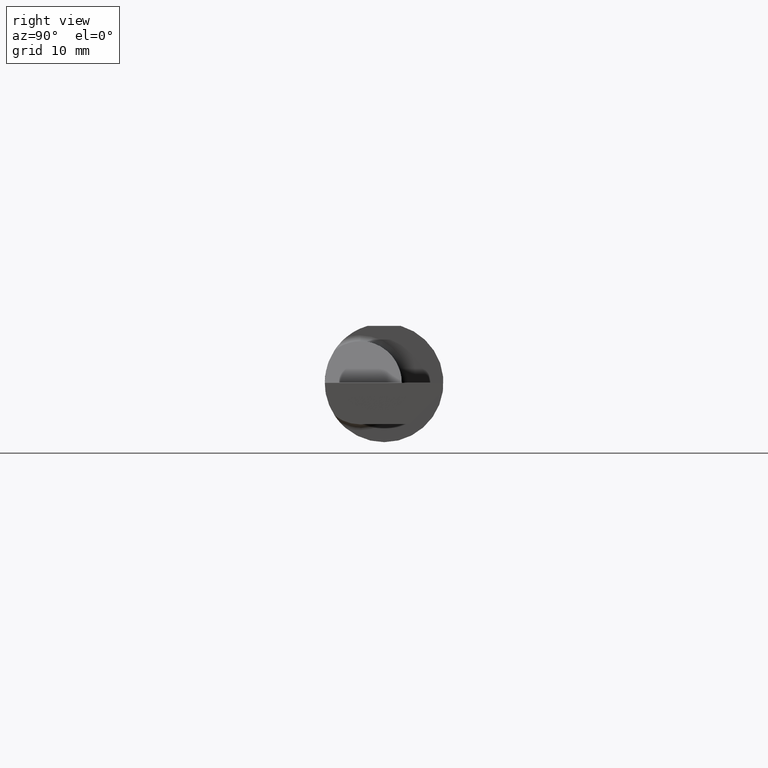
[diagram: clean part render]
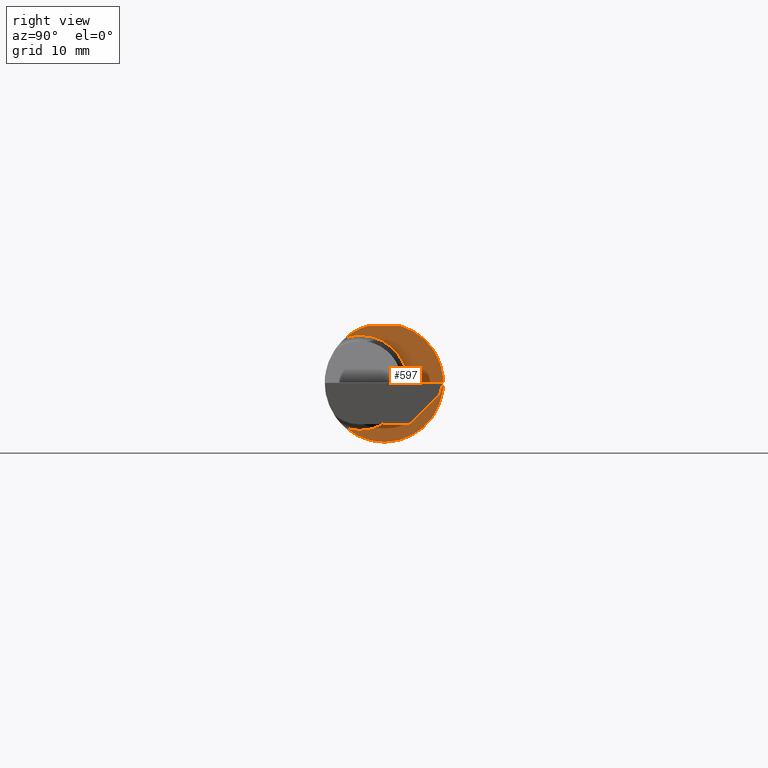
[diagram: same view with one face highlighted and labeled with its STEP entity id]
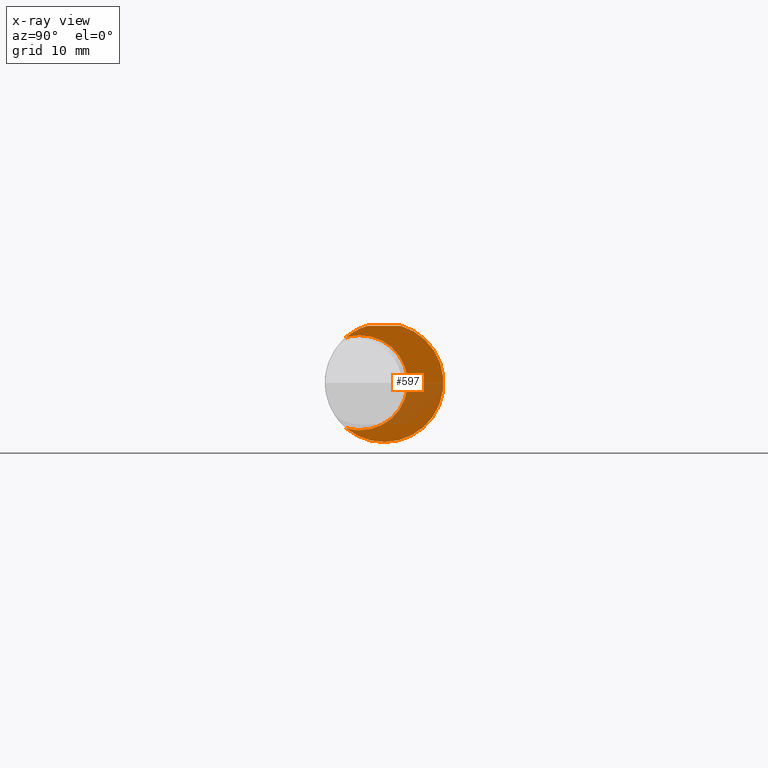
[diagram: x-ray of the same camera — body ghosted, the highlighted face saturated]
A machine part, right view. The second image highlights one B-rep face of the part: STEP entity #597.
The next image is the same camera in x-ray: the body ghosted, the highlighted face saturated — about 25% of this face is hidden behind the body in this view.
In plain terms, the highlighted planar face has unit normal (1, 0, 0).
Its self-contained STEP definition (entity closure, byte-faithful):
#4 = AXIS2_PLACEMENT_3D ( 'NONE', #427, #6, #507 ) ;
#6 = DIRECTION ( 'NONE',  ( -1.000000000000000000, -0.000000000000000000, -0.000000000000000000 ) ) ;
#10 = EDGE_CURVE ( 'NONE', #130, #264, #173, .T. ) ;
#11 = CARTESIAN_POINT ( 'NONE',  ( 2.200000000000000178, 0.2741500000000000048, 0.000000000000000000 ) ) ;
#22 = CIRCLE ( 'NONE', #766, 0.1999999999999999833 ) ;
#31 = DIRECTION ( 'NONE',  ( -1.000000000000000000, -0.000000000000000000, -0.000000000000000000 ) ) ;
#48 = ORIENTED_EDGE ( 'NONE', *, *, #101, .T. ) ;
#69 = ORIENTED_EDGE ( 'NONE', *, *, #350, .T. ) ;
#70 = DIRECTION ( 'NONE',  ( 0.000000000000000000, 0.000000000000000000, -1.000000000000000000 ) ) ;
#88 = VERTEX_POINT ( 'NONE', #312 ) ;
#101 = EDGE_CURVE ( 'NONE', #233, #325, #105, .T. ) ;
#105 = CIRCLE ( 'NONE', #4, 0.1999999999999999833 ) ;
#122 = ORIENTED_EDGE ( 'NONE', *, *, #758, .T. ) ;
#130 = VERTEX_POINT ( 'NONE', #750 ) ;
#157 = DIRECTION ( 'NONE',  ( 0.000000000000000000, 0.000000000000000000, 1.000000000000000000 ) ) ;
#158 = LINE ( 'NONE', #718, #653 ) ;
#161 = DIRECTION ( 'NONE',  ( -1.000000000000000000, -0.000000000000000000, -0.000000000000000000 ) ) ;
#173 = CIRCLE ( 'NONE', #628, 0.2498499999999999888 ) ;
#216 = CIRCLE ( 'NONE', #602, 0.2498499999999999888 ) ;
#233 = VERTEX_POINT ( 'NONE', #761 ) ;
#247 = DIRECTION ( 'NONE',  ( 1.000000000000000000, 0.000000000000000000, 0.000000000000000000 ) ) ;
#264 = VERTEX_POINT ( 'NONE', #696 ) ;
#282 = DIRECTION ( 'NONE',  ( 0.000000000000000000, 0.000000000000000000, 1.000000000000000000 ) ) ;
#307 = CARTESIAN_POINT ( 'NONE',  ( 2.200000000000000178, 0.000000000000000000, 0.000000000000000000 ) ) ;
#312 = CARTESIAN_POINT ( 'NONE',  ( 2.200000000000000178, -0.1008499999999999536, -0.1999999999999999833 ) ) ;
#319 = PLANE ( 'NONE',  #727 ) ;
#325 = VERTEX_POINT ( 'NONE', #721 ) ;
#338 = EDGE_LOOP ( 'NONE', ( #563, #387, #581, #48, #69, #122 ) ) ;
#350 = EDGE_CURVE ( 'NONE', #325, #88, #562, .T. ) ;
#369 = CARTESIAN_POINT ( 'NONE',  ( 2.200000000000000178, 0.000000000000000000, 0.000000000000000000 ) ) ;
#387 = ORIENTED_EDGE ( 'NONE', *, *, #401, .F. ) ;
#401 = EDGE_CURVE ( 'NONE', #477, #264, #158, .T. ) ;
#427 = CARTESIAN_POINT ( 'NONE',  ( 2.200000000000000178, -0.1008499999999999674, 0.000000000000000000 ) ) ;
#430 = CARTESIAN_POINT ( 'NONE',  ( 2.200000000000000178, -0.06997856814768374512, 0.2398500000000000076 ) ) ;
#439 = DIRECTION ( 'NONE',  ( 0.000000000000000000, 0.000000000000000000, -1.000000000000000000 ) ) ;
#477 = VERTEX_POINT ( 'NONE', #430 ) ;
#507 = DIRECTION ( 'NONE',  ( 0.000000000000000000, 0.000000000000000000, 1.000000000000000000 ) ) ;
#518 = EDGE_CURVE ( 'NONE', #477, #233, #216, .T. ) ;
#557 = DIRECTION ( 'NONE',  ( 1.000000000000000000, 0.000000000000000000, 0.000000000000000000 ) ) ;
#562 = CIRCLE ( 'NONE', #613, 0.1999999999999999833 ) ;
#563 = ORIENTED_EDGE ( 'NONE', *, *, #10, .T. ) ;
#581 = ORIENTED_EDGE ( 'NONE', *, *, #518, .T. ) ;
#593 = DIRECTION ( 'NONE',  ( -0.000000000000000000, 1.000000000000000000, 0.000000000000000000 ) ) ;
#597 = ADVANCED_FACE ( 'NONE', ( #629 ), #319, .T. ) ;
#602 = AXIS2_PLACEMENT_3D ( 'NONE', #369, #247, #439 ) ;
#613 = AXIS2_PLACEMENT_3D ( 'NONE', #708, #31, #282 ) ;
#628 = AXIS2_PLACEMENT_3D ( 'NONE', #307, #557, #744 ) ;
#629 = FACE_OUTER_BOUND ( 'NONE', #338, .T. ) ;
#653 = VECTOR ( 'NONE', #593, 39.37007874015748143 ) ;
#654 = CARTESIAN_POINT ( 'NONE',  ( 2.200000000000000178, -0.1008499999999999674, 0.000000000000000000 ) ) ;
#696 = CARTESIAN_POINT ( 'NONE',  ( 2.200000000000000178, 0.06997856814768360634, 0.2398500000000000076 ) ) ;
#703 = DIRECTION ( 'NONE',  ( 1.000000000000000000, 0.000000000000000000, 0.000000000000000000 ) ) ;
#708 = CARTESIAN_POINT ( 'NONE',  ( 2.200000000000000178, -0.1008499999999999674, 0.000000000000000000 ) ) ;
#718 = CARTESIAN_POINT ( 'NONE',  ( 2.200000000000000178, -0.2498499999999999888, 0.2398500000000000076 ) ) ;
#721 = CARTESIAN_POINT ( 'NONE',  ( 2.200000000000000178, -0.1008499999999999674, 0.1999999999999999833 ) ) ;
#727 = AXIS2_PLACEMENT_3D ( 'NONE', #11, #703, #70 ) ;
#744 = DIRECTION ( 'NONE',  ( 0.000000000000000000, 0.000000000000000000, -1.000000000000000000 ) ) ;
#750 = CARTESIAN_POINT ( 'NONE',  ( 2.200000000000000178, -0.1616050818046604332, -0.1905487340154980169 ) ) ;
#758 = EDGE_CURVE ( 'NONE', #88, #130, #22, .T. ) ;
#761 = CARTESIAN_POINT ( 'NONE',  ( 2.200000000000000178, -0.1616050818046604332, 0.1905487340154980169 ) ) ;
#766 = AXIS2_PLACEMENT_3D ( 'NONE', #654, #161, #157 ) ;